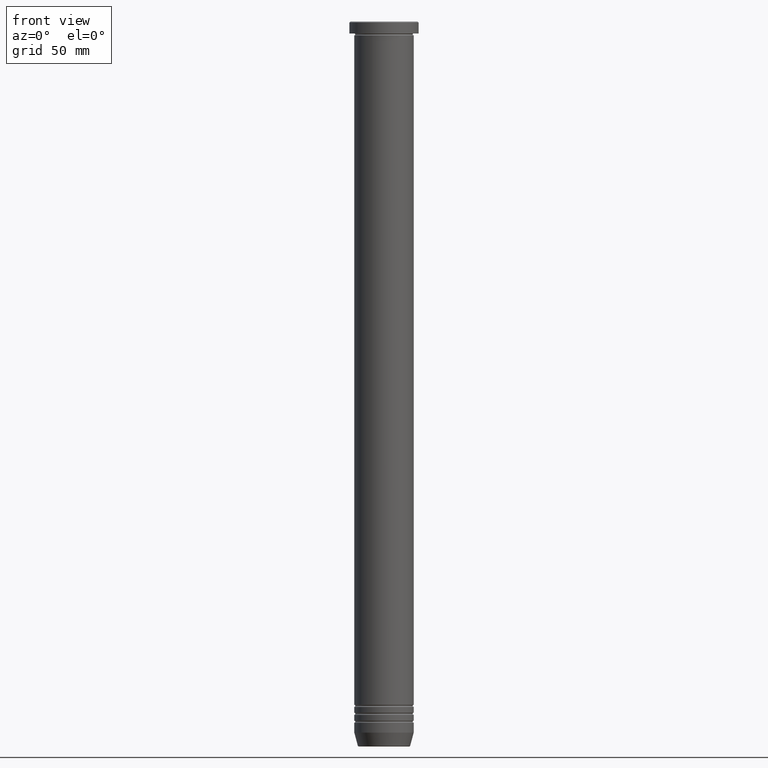
[diagram: clean part render]
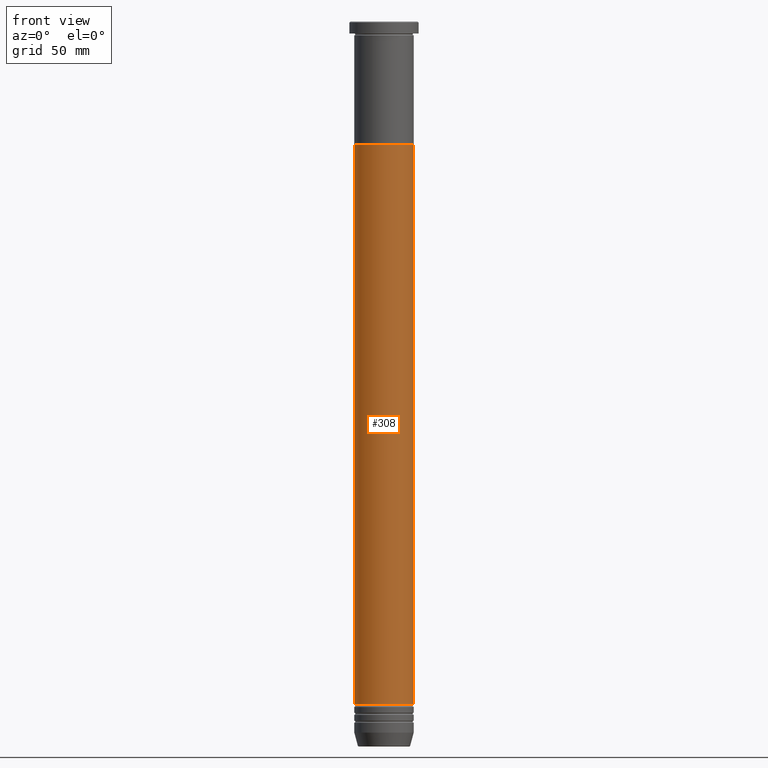
[diagram: same view with one face highlighted and labeled with its STEP entity id]
A machine part, front view. The second image highlights one B-rep face of the part: STEP entity #308.
In plain terms, the highlighted cylindrical surface (edge-blend (fillet) strip) has radius 15 mm, axis along (-0, -0, 1).
Its self-contained STEP definition (entity closure, byte-faithful):
#25 = EDGE_CURVE ( 'NONE', #1110, #374, #603, .T. ) ;
#35 = FACE_OUTER_BOUND ( 'NONE', #749, .T. ) ;
#45 = CARTESIAN_POINT ( 'NONE',  ( 0.000000000000000000, 0.000000000000000000, -345.0000000000000000 ) ) ;
#205 = LINE ( 'NONE', #1074, #477 ) ;
#243 = DIRECTION ( 'NONE',  ( 1.000000000000000000, 0.000000000000000000, 0.000000000000000000 ) ) ;
#246 = VECTOR ( 'NONE', #432, 1000.000000000000000 ) ;
#302 = DIRECTION ( 'NONE',  ( 1.000000000000000000, 0.000000000000000000, 0.000000000000000000 ) ) ;
#303 = CARTESIAN_POINT ( 'NONE',  ( 15.00000000000000000, 0.000000000000000000, -62.00000000000000000 ) ) ;
#308 = ADVANCED_FACE ( 'NONE', ( #35 ), #731, .T. ) ;
#326 = DIRECTION ( 'NONE',  ( -0.000000000000000000, -0.000000000000000000, 1.000000000000000000 ) ) ;
#327 = ORIENTED_EDGE ( 'NONE', *, *, #25, .F. ) ;
#374 = VERTEX_POINT ( 'NONE', #489 ) ;
#391 = VERTEX_POINT ( 'NONE', #303 ) ;
#397 = DIRECTION ( 'NONE',  ( -0.000000000000000000, -0.000000000000000000, 1.000000000000000000 ) ) ;
#432 = DIRECTION ( 'NONE',  ( -0.000000000000000000, -0.000000000000000000, 1.000000000000000000 ) ) ;
#477 = VECTOR ( 'NONE', #909, 1000.000000000000000 ) ;
#489 = CARTESIAN_POINT ( 'NONE',  ( -15.00000000000000000, 1.836970198721029589E-15, -62.00000000000000000 ) ) ;
#515 = CIRCLE ( 'NONE', #653, 15.00000000000000000 ) ;
#548 = DIRECTION ( 'NONE',  ( -0.000000000000000000, -0.000000000000000000, 1.000000000000000000 ) ) ;
#603 = LINE ( 'NONE', #777, #246 ) ;
#653 = AXIS2_PLACEMENT_3D ( 'NONE', #1102, #548, #302 ) ;
#689 = EDGE_CURVE ( 'NONE', #932, #391, #205, .T. ) ;
#728 = ORIENTED_EDGE ( 'NONE', *, *, #969, .T. ) ;
#731 = CYLINDRICAL_SURFACE ( 'NONE', #779, 14.99999999999999645 ) ;
#738 = DIRECTION ( 'NONE',  ( 1.000000000000000000, 0.000000000000000000, 0.000000000000000000 ) ) ;
#747 = ORIENTED_EDGE ( 'NONE', *, *, #765, .F. ) ;
#749 = EDGE_LOOP ( 'NONE', ( #327, #728, #902, #747 ) ) ;
#765 = EDGE_CURVE ( 'NONE', #374, #391, #515, .T. ) ;
#777 = CARTESIAN_POINT ( 'NONE',  ( -14.99999999999999645, 1.836970198721029194E-15, 0.000000000000000000 ) ) ;
#779 = AXIS2_PLACEMENT_3D ( 'NONE', #1129, #397, #738 ) ;
#797 = CIRCLE ( 'NONE', #888, 14.99999999999999112 ) ;
#888 = AXIS2_PLACEMENT_3D ( 'NONE', #45, #326, #243 ) ;
#892 = CARTESIAN_POINT ( 'NONE',  ( 14.99999999999999112, 0.000000000000000000, -345.0000000000000000 ) ) ;
#902 = ORIENTED_EDGE ( 'NONE', *, *, #689, .T. ) ;
#909 = DIRECTION ( 'NONE',  ( -0.000000000000000000, -0.000000000000000000, 1.000000000000000000 ) ) ;
#932 = VERTEX_POINT ( 'NONE', #892 ) ;
#969 = EDGE_CURVE ( 'NONE', #1110, #932, #797, .T. ) ;
#1025 = CARTESIAN_POINT ( 'NONE',  ( -14.99999999999999112, 1.836970198721028800E-15, -345.0000000000000000 ) ) ;
#1074 = CARTESIAN_POINT ( 'NONE',  ( 14.99999999999999645, 0.000000000000000000, 0.000000000000000000 ) ) ;
#1102 = CARTESIAN_POINT ( 'NONE',  ( 0.000000000000000000, 0.000000000000000000, -62.00000000000000000 ) ) ;
#1110 = VERTEX_POINT ( 'NONE', #1025 ) ;
#1129 = CARTESIAN_POINT ( 'NONE',  ( 0.000000000000000000, 0.000000000000000000, 0.000000000000000000 ) ) ;